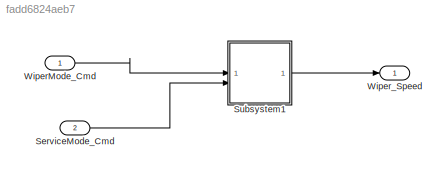
MODEL slx_fadd6824aeb7
KIND model
CONFIG AbsTol = auto
CONFIG EnableMultiTasking = off
CONFIG FixedStep = auto
CONFIG MaxStep = auto
CONFIG MinStep = auto
CONFIG RelTol = 1e-3
CONFIG SampleTimeConstraint = Unconstrained
CONFIG SolverName = FixedStepAuto
CONFIG StartTime = 0.0
CONFIG StopTime = 10.0
BLOCK [Inport] ServiceMode_Cmd
  Port = 2
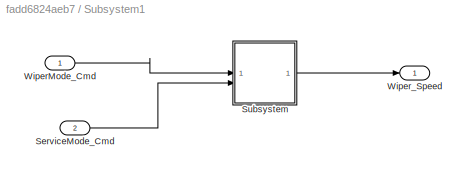
BLOCK [SubSystem] Subsystem1
BLOCK [Inport] Subsystem1/ServiceMode_Cmd
  Port = 2
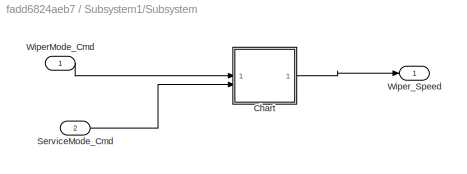
BLOCK [SubSystem] Subsystem1/Subsystem
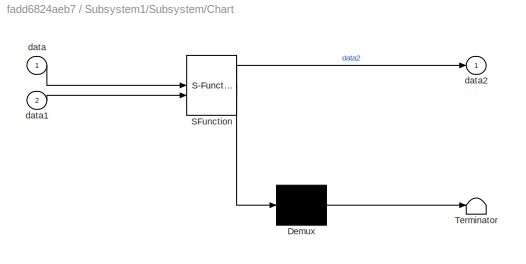
BLOCK [SubSystem] Subsystem1/Subsystem/Chart
  ErrorFcn = Stateflow.Translate.translate
  PermitHierarchicalResolution = ExplicitOnly
  SFBlockType = Chart
  TreatAsAtomicUnit = on
BLOCK [Demux] Subsystem1/Subsystem/Chart/ Demux 
  Outputs = 1
BLOCK [S-Function] Subsystem1/Subsystem/Chart/ SFunction 
  EnableBusSupport = off
  FunctionName = sf_sfun
  PortCounts = [2 2]
  SFcnIsStateOwnerBlock = off
  SFunctionDeploymentMode = off
  Tag = Stateflow S-Function 3
BLOCK [Terminator] Subsystem1/Subsystem/Chart/ Terminator 
BLOCK [Inport] Subsystem1/Subsystem/Chart/data
BLOCK [Inport] Subsystem1/Subsystem/Chart/data1
  Port = 2
BLOCK [Outport] Subsystem1/Subsystem/Chart/data2
BLOCK [Inport] Subsystem1/Subsystem/ServiceMode_Cmd
  Port = 2
BLOCK [Inport] Subsystem1/Subsystem/WiperMode_Cmd
BLOCK [Outport] Subsystem1/Subsystem/Wiper_Speed
BLOCK [Inport] Subsystem1/WiperMode_Cmd
BLOCK [Outport] Subsystem1/Wiper_Speed
BLOCK [Inport] WiperMode_Cmd
BLOCK [Outport] Wiper_Speed
LINE ServiceMode_Cmd:1 -> Subsystem1:2
LINE Subsystem1/ServiceMode_Cmd:1 -> Subsystem1/Subsystem:2
LINE Subsystem1/Subsystem/Chart:1 -> Subsystem1/Subsystem/Wiper_Speed:1
LINE Subsystem1/Subsystem/ServiceMode_Cmd:1 -> Subsystem1/Subsystem/Chart:2
LINE Subsystem1/Subsystem/WiperMode_Cmd:1 -> Subsystem1/Subsystem/Chart:1
LINE Subsystem1/Subsystem:1 -> Subsystem1/Wiper_Speed:1
LINE Subsystem1/WiperMode_Cmd:1 -> Subsystem1/Subsystem:1
LINE Subsystem1:1 -> Wiper_Speed:1
LINE WiperMode_Cmd:1 -> Subsystem1:1
CHART Subsystem1/Subsystem/Chart states=9 transitions=12
  STATE_LABEL '?'
  STATE_LABEL 'mode_high\nentry:\nWiper_Speed = WiperSpeed_High;'
  STATE_LABEL 'normal'
  STATE_LABEL 'Service'
  STATE_LABEL 'Mode_intermittent'
  STATE_LABEL 'waiting\n\nentry :\nWiper_Speed = 0;\nduring:\ntimer = timer+1;'
  STATE_LABEL 'wiping\n\nentry:\nWiper_Speed = Wiper_Speed_low;\ntimer = 0;'
  STATE_LABEL '[after(1, sec)]'
  STATE_LABEL '[timer >= Intermittent_Delay]'
  STATE_LABEL 'Mode_off\n\nentry:\nWiper_Speed = 0;\n'
  STATE_LABEL 'mode_low\nentry:\nWiper_Speed = WiperSpeed_Low;'
  STATE_LABEL '[ServiceMode_Cmd == true]'
  STATE_LABEL '[WiperMode_cmd ~= WiperModes.HIGH]'
  STATE_LABEL '[WiperMode_cmd == WiperModes.High]'
  STATE_LABEL '[ServiceMode_Cmd == false]'
  STATE_LABEL '[Wipermode_cmd == WiperModes.INTERMITTENT]'
  STATE_LABEL '[WiperMode_cmd == WiperModes.Low]'
  STATE_LABEL '[WiperMode_Cmd ~= WiperModes.LOW]'
  STATE_LABEL '[WiperMode_Cmd ~= WiperModes.INTERMITTENT]'
  STATE_LABEL 'mode_high\nentry:\nWiper_Speed = WiperSpeed_High;'
  STATE_LABEL 'normal'
  STATE_LABEL 'Service'
  STATE_LABEL 'Mode_intermittent'
  STATE_LABEL 'waiting\n\nentry :\nWiper_Speed = 0;\nduring:\ntimer = timer+1;'
  STATE_LABEL 'wiping\n\nentry:\nWiper_Speed = Wiper_Speed_low;\ntimer = 0;'
  STATE_LABEL '[after(1, sec)]'
  STATE_LABEL '[timer >= Intermittent_Delay]'
  STATE_LABEL 'waiting\n\nentry :\nWiper_Speed = 0;\nduring:\ntimer = timer+1;'
  STATE_LABEL 'wiping\n\nentry:\nWiper_Speed = Wiper_Speed_low;\ntimer = 0;'
  STATE_LABEL 'Mode_off\n\nentry:\nWiper_Speed = 0;\n'
  STATE_LABEL 'mode_low\nentry:\nWiper_Speed = WiperSpeed_Low;'
CHART  states=0 transitions=0
